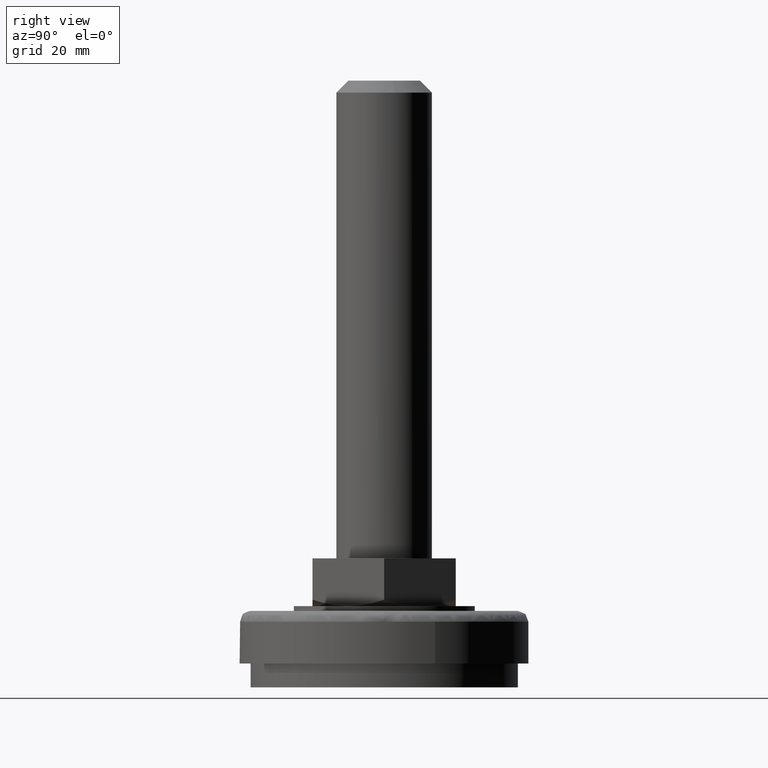
[diagram: clean part render]
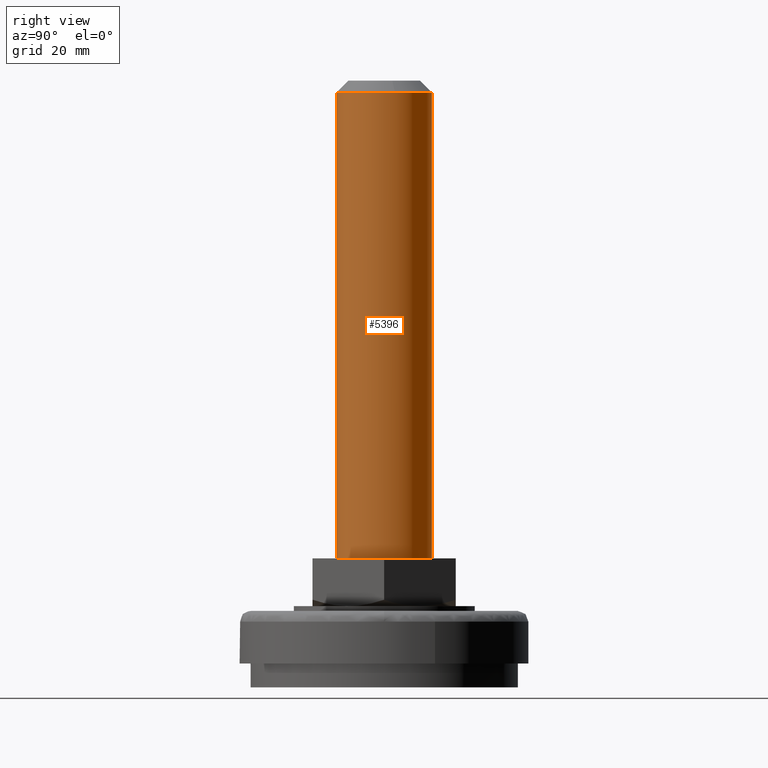
[diagram: same view with one face highlighted and labeled with its STEP entity id]
A machine part, right view. The second image highlights one B-rep face of the part: STEP entity #5396.
In plain terms, the highlighted face is a freeform B-spline surface patch.
Its self-contained STEP definition (entity closure, byte-faithful):
#5079=CARTESIAN_POINT('',(9.742181531738417,2.256080451495225,124.499999999951800));
#5080=VERTEX_POINT('',#5079);
#5081=CARTESIAN_POINT('',(10.0,0.0,124.500000000000000));
#5082=VERTEX_POINT('',#5081);
#5083=CARTESIAN_POINT('',(9.742181531738419,2.256080451495225,124.499999999951710));
#5084=CARTESIAN_POINT('',(10.0,1.142771607221529,124.500000000000030));
#5085=CARTESIAN_POINT('',(10.0,0.0,124.500000000000000));
#5093=(BOUNDED_CURVE()B_SPLINE_CURVE(2,(#5083,#5084,#5085),.UNSPECIFIED.,.F.,.U.)B_SPLINE_CURVE_WITH_KNOTS((3,3),(0.961422971770938,1.0),.UNSPECIFIED.)CURVE()GEOMETRIC_REPRESENTATION_ITEM()RATIONAL_B_SPLINE_CURVE((0.923556557420638,0.954804200118931,1.0))REPRESENTATION_ITEM(''));
#5094=EDGE_CURVE('',#5080,#5082,#5093,.T.);
#5152=CARTESIAN_POINT('',(0.087265355814368,9.999619230747641,124.499999999886800));
#5153=VERTEX_POINT('',#5152);
#5159=CARTESIAN_POINT('',(-1.241280020895585,9.922662138243215,124.500000000000000));
#5160=VERTEX_POINT('',#5159);
#5161=CARTESIAN_POINT('',(-1.241280020895585,9.922662138243215,124.500000000000060));
#5162=CARTESIAN_POINT('',(-0.623049275433374,10.000000000000002,124.500000000000060));
#5163=CARTESIAN_POINT('',(0.0,10.0,124.500000000000000));
#5164=CARTESIAN_POINT('',(0.043633509036676,9.999999999999998,124.499999999999970));
#5165=CARTESIAN_POINT('',(0.087265355814368,9.999619230747641,124.499999999886840));
#5173=(BOUNDED_CURVE()B_SPLINE_CURVE(2,(#5161,#5162,#5163,#5164,#5165),.UNSPECIFIED.,.F.,.U.)B_SPLINE_CURVE_WITH_KNOTS((3,2,3),(0.728526071025992,0.750000000000000,0.751539894364214),.UNSPECIFIED.)CURVE()GEOMETRIC_REPRESENTATION_ITEM()RATIONAL_B_SPLINE_CURVE((0.954005430268301,0.974841727288925,1.0,0.998195901532130,0.996414028032766))REPRESENTATION_ITEM(''));
#5174=EDGE_CURVE('',#5160,#5153,#5173,.T.);
#5191=CARTESIAN_POINT('',(0.087265355127119,-9.999619230640459,124.500000000000000));
#5192=VERTEX_POINT('',#5191);
#5208=CARTESIAN_POINT('',(10.0,0.0,124.500000000000000));
#5209=CARTESIAN_POINT('',(10.0,-9.913112105665494,124.499999999999990));
#5210=CARTESIAN_POINT('',(0.087265355127119,-9.999619230640459,124.499999999999970));
#5218=(BOUNDED_CURVE()B_SPLINE_CURVE(2,(#5208,#5209,#5210),.UNSPECIFIED.,.F.,.U.)B_SPLINE_CURVE_WITH_KNOTS((3,3),(0.0,0.248460105659962),.UNSPECIFIED.)CURVE()GEOMETRIC_REPRESENTATION_ITEM()RATIONAL_B_SPLINE_CURVE((1.0,0.708910879626093,0.996414028088716))REPRESENTATION_ITEM(''));
#5219=EDGE_CURVE('',#5082,#5192,#5218,.T.);
#5238=CARTESIAN_POINT('',(0.087265355814368,9.999619230747641,124.499999999886840));
#5239=CARTESIAN_POINT('',(7.964864184465831,9.930872465840920,124.500000000000000));
#5240=CARTESIAN_POINT('',(9.742181531738419,2.256080451495225,124.499999999951710));
#5248=(BOUNDED_CURVE()B_SPLINE_CURVE(2,(#5238,#5239,#5240),.UNSPECIFIED.,.F.,.U.)B_SPLINE_CURVE_WITH_KNOTS((3,3),(0.751539894364215,0.961422971770938),.UNSPECIFIED.)CURVE()GEOMETRIC_REPRESENTATION_ITEM()RATIONAL_B_SPLINE_CURVE((0.996414028032763,0.753549905475303,0.923556557420638))REPRESENTATION_ITEM(''));
#5249=EDGE_CURVE('',#5153,#5080,#5248,.T.);
#5287=CARTESIAN_POINT('',(-1.241280020946220,9.922662138236882,27.0));
#5288=VERTEX_POINT('',#5287);
#5304=CARTESIAN_POINT('',(0.087265355144223,-9.999619230640310,27.0));
#5305=VERTEX_POINT('',#5304);
#5321=CARTESIAN_POINT('',(0.087265355144223,-9.999619230640310,27.0));
#5322=CARTESIAN_POINT('',(0.087265355127119,-9.999619230640459,124.500000000000000));
#5323=QUASI_UNIFORM_CURVE('',1,(#5321,#5322),.UNSPECIFIED.,.F.,.U.);
#5324=EDGE_CURVE('',#5305,#5192,#5323,.T.);
#5328=CARTESIAN_POINT('',(-1.241280020946220,9.922662138236882,27.0));
#5329=CARTESIAN_POINT('',(-1.241280020895585,9.922662138243215,124.500000000000000));
#5330=QUASI_UNIFORM_CURVE('',1,(#5328,#5329),.UNSPECIFIED.,.F.,.U.);
#5331=EDGE_CURVE('',#5288,#5160,#5330,.T.);
#5336=CARTESIAN_POINT('',(0.087265354983739,-9.999619230641709,24.562499999999989));
#5337=CARTESIAN_POINT('',(10.086884585625448,-9.912353875657971,24.562499999999996));
#5338=CARTESIAN_POINT('',(9.999619230641709,0.087265354983739,24.562499999999989));
#5339=CARTESIAN_POINT('',(9.912353875657971,10.086884585625448,24.562499999999996));
#5340=CARTESIAN_POINT('',(-0.087265354983739,9.999619230641709,24.562499999999989));
#5341=CARTESIAN_POINT('',(-0.666501589581736,9.994564312602755,24.562499999999993));
#5342=CARTESIAN_POINT('',(-1.241280020798293,9.922662138255385,24.562500000000000));
#5343=CARTESIAN_POINT('',(0.087265354983739,-9.999619230641709,126.998437499999990));
#5344=CARTESIAN_POINT('',(10.086884585625448,-9.912353875657971,126.998437499999990));
#5345=CARTESIAN_POINT('',(9.999619230641709,0.087265354983739,126.998437499999990));
#5346=CARTESIAN_POINT('',(9.912353875657971,10.086884585625448,126.998437499999990));
#5347=CARTESIAN_POINT('',(-0.087265354983739,9.999619230641709,126.998437499999990));
#5348=CARTESIAN_POINT('',(-0.666501589581736,9.994564312602755,126.998437500000010));
#5349=CARTESIAN_POINT('',(-1.241280020798293,9.922662138255385,126.998437499999980));
#5357=(BOUNDED_SURFACE()B_SPLINE_SURFACE(2,1,((#5336,#5343),(#5337,#5344),(#5338,#5345),(#5339,#5346),(#5340,#5347),(#5341,#5348),(#5342,#5349)),.UNSPECIFIED.,.F.,.F.,.U.)B_SPLINE_SURFACE_WITH_KNOTS((3,2,2,3),(2,2),(0.0,16.568542494923800,33.137084989847587,34.462568389441500),(0.0,102.435937499999990),.UNSPECIFIED.)GEOMETRIC_REPRESENTATION_ITEM()RATIONAL_B_SPLINE_SURFACE(((1.0,1.0),(0.707106781186548,0.707106781186548),(1.0,1.0),(0.707106781186548,0.707106781186548),(1.0,1.0),(0.976568542494924,0.976568542494924),(0.956886118190660,0.956886118190660)))REPRESENTATION_ITEM('')SURFACE());
#5358=CARTESIAN_POINT('',(10.0,0.0,27.0));
#5359=VERTEX_POINT('',#5358);
#5360=CARTESIAN_POINT('',(10.0,0.0,27.0));
#5361=CARTESIAN_POINT('',(10.000000000000002,10.000000000000002,27.000000000000011));
#5362=CARTESIAN_POINT('',(0.0,10.0,27.0));
#5363=CARTESIAN_POINT('',(-0.623049275484601,10.0,27.000000000000004));
#5364=CARTESIAN_POINT('',(-1.241280020946220,9.922662138236882,26.999999999999996));
#5372=(BOUNDED_CURVE()B_SPLINE_CURVE(2,(#5360,#5361,#5362,#5363,#5364),.UNSPECIFIED.,.F.,.U.)B_SPLINE_CURVE_WITH_KNOTS((3,2,3),(0.0,0.250000000000000,0.271473928975729),.UNSPECIFIED.)CURVE()GEOMETRIC_REPRESENTATION_ITEM()RATIONAL_B_SPLINE_CURVE((1.0,0.707106781186548,1.0,0.974841727286908,0.954005430264961))REPRESENTATION_ITEM(''));
#5373=EDGE_CURVE('',#5359,#5288,#5372,.T.);
#5374=ORIENTED_EDGE('',*,*,#5373,.T.);
#5375=ORIENTED_EDGE('',*,*,#5331,.T.);
#5376=ORIENTED_EDGE('',*,*,#5174,.T.);
#5377=ORIENTED_EDGE('',*,*,#5249,.T.);
#5378=ORIENTED_EDGE('',*,*,#5094,.T.);
#5379=ORIENTED_EDGE('',*,*,#5219,.T.);
#5380=ORIENTED_EDGE('',*,*,#5324,.F.);
#5381=CARTESIAN_POINT('',(0.087265355144223,-9.999619230640310,27.000000000000004));
#5382=CARTESIAN_POINT('',(10.0,-9.913112105631578,26.999999999999996));
#5383=CARTESIAN_POINT('',(10.0,0.0,27.0));
#5391=(BOUNDED_CURVE()B_SPLINE_CURVE(2,(#5381,#5382,#5383),.UNSPECIFIED.,.F.,.U.)B_SPLINE_CURVE_WITH_KNOTS((3,3),(0.751539894340641,1.0),.UNSPECIFIED.)CURVE()GEOMETRIC_REPRESENTATION_ITEM()RATIONAL_B_SPLINE_CURVE((0.996414028087321,0.708910879626799,1.0))REPRESENTATION_ITEM(''));
#5392=EDGE_CURVE('',#5305,#5359,#5391,.T.);
#5393=ORIENTED_EDGE('',*,*,#5392,.T.);
#5394=EDGE_LOOP('',(#5374,#5375,#5376,#5377,#5378,#5379,#5380,#5393));
#5395=FACE_OUTER_BOUND('',#5394,.T.);
#5396=ADVANCED_FACE('',(#5395),#5357,.T.);